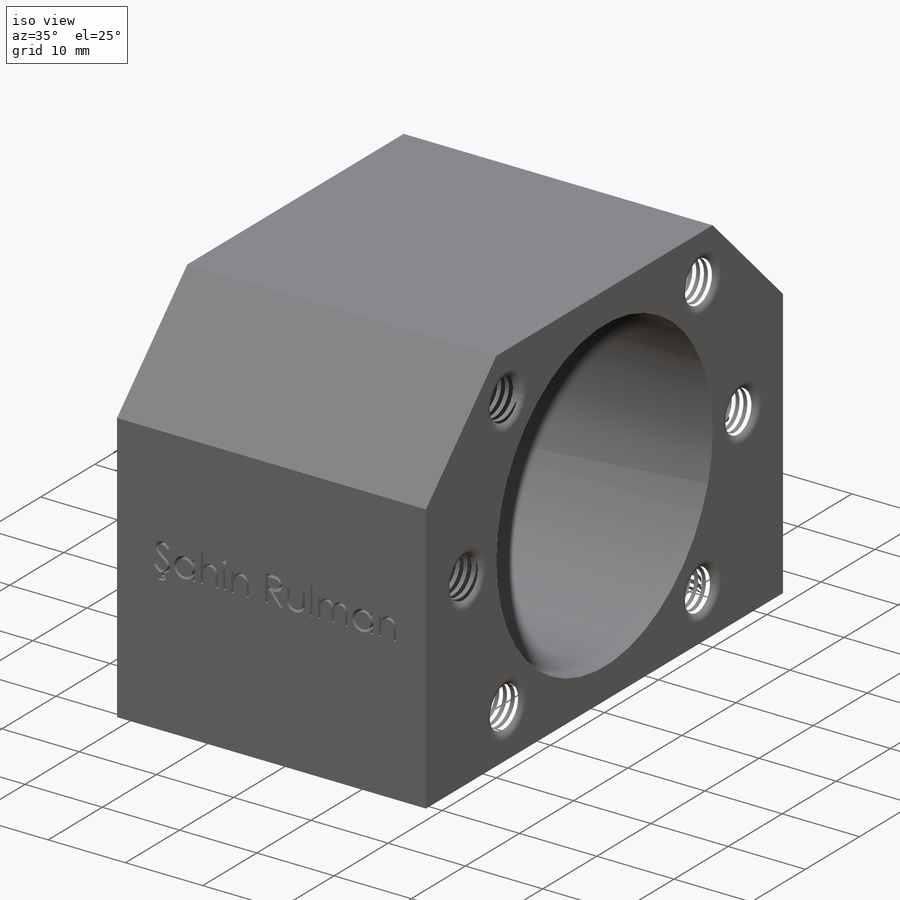
[diagram: iso view]
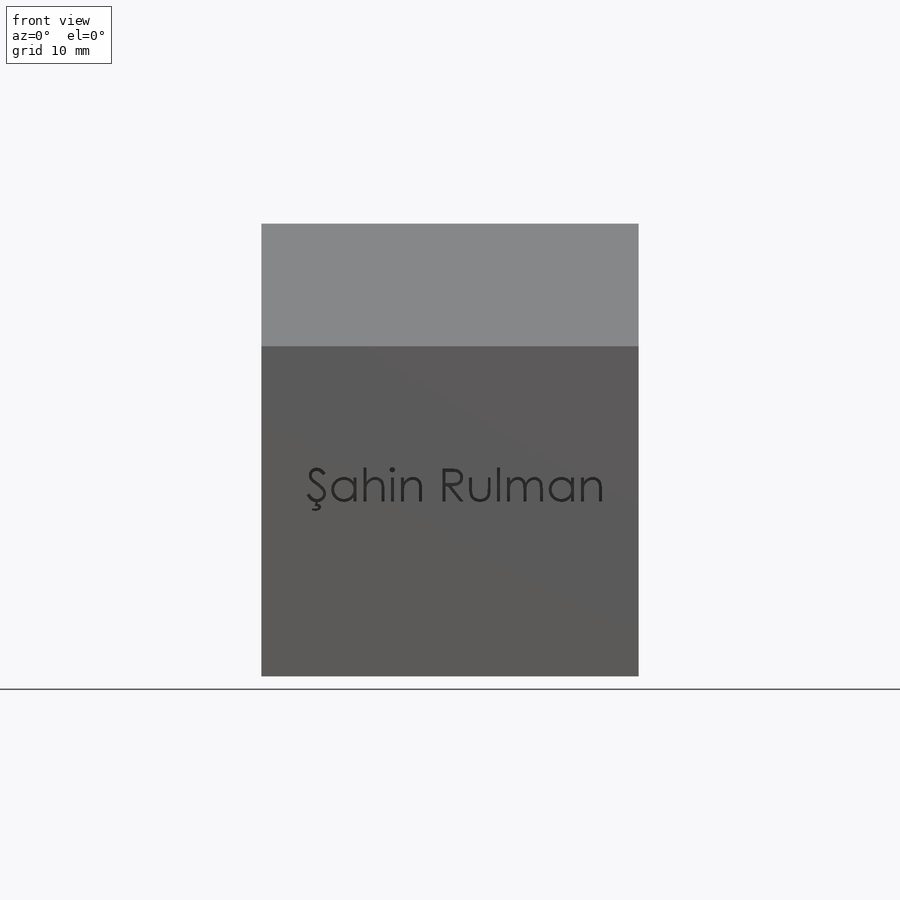
[diagram: front view]
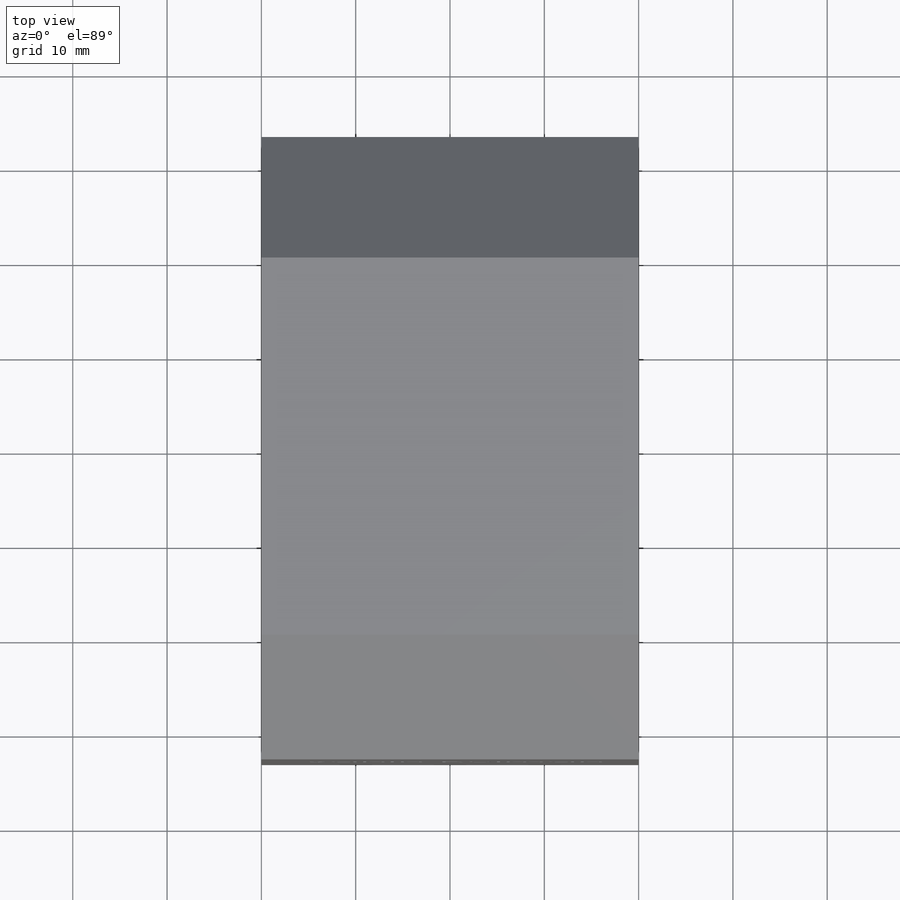
[diagram: top view]
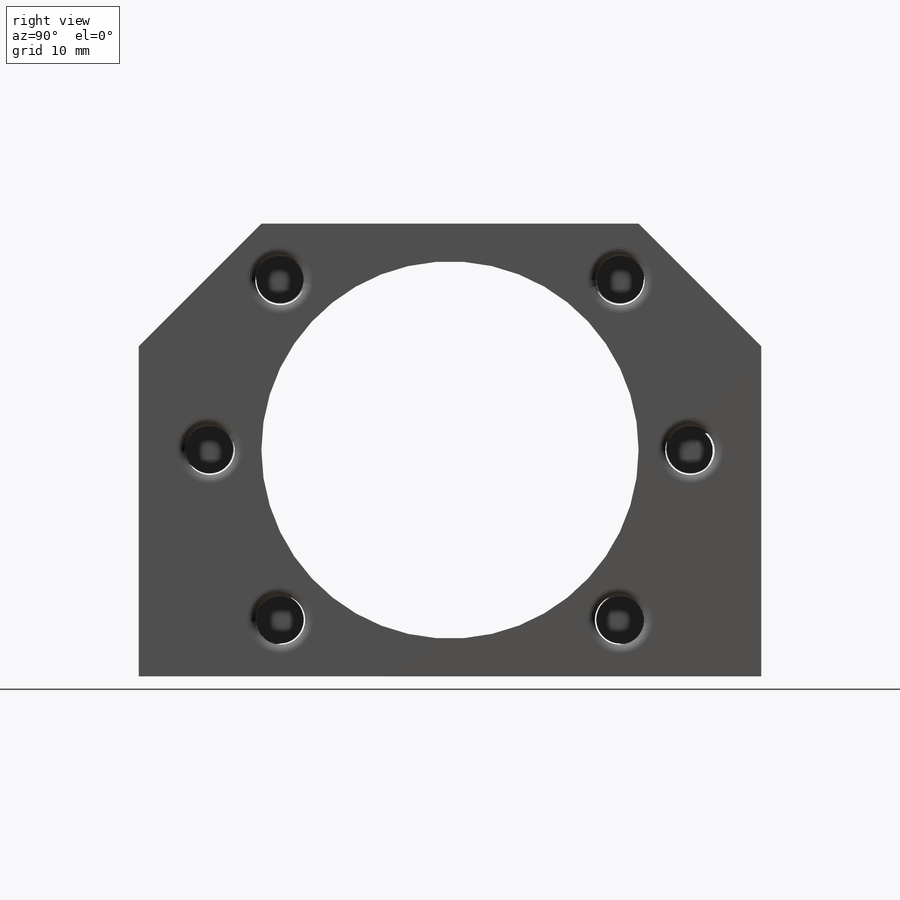
[diagram: right view]
SOLIDWORKS PART (.sldprt)
format: sldprt  version: not decoded by parser v0  size: 3,762,688 bytes
history: native  units: mm
features: sketch x9, cut_extrude x4, mirror x3, fillet x2, helix x2, plane x2, sweep x2, pattern_circular x2, material x1, extrude x1 (+11 scaffold rows collapsed)
feature tree (39):
  scaffold x11  (default folders/planes/origin — collapsed)
  material  "Material <not specified>"
  sketch  "Sketch1"  dims[D9=40.0mm D1=66.0mm D2=33.0mm D3=48.0mm D4=13.0mm D5=13.0mm D6=13.0mm D7=13.0mm D8=24.0mm]
  extrude  "Boss-Extrude1"  Depth=40mm
  sketch  "Sketch2"  dims[c1.D4=5.0mm c1.D1=~28.589332mm c2.D1=45.0deg c2.D2=~47.373576mm c3.D2=45.0deg c3.D3=6.5mm]
  cut_extrude  "Cut-Extrude1"  Depth=15mm
  fillet  "Fillet1"  Radius=1mm
  sketch  "Sketch5"
  cut_extrude  "Cut-Extrude2"  Depth=2mm
  sketch  "Sketch6"
  cut_extrude  "Cut-Extrude3"  Depth=2mm
  sketch  "Sketch7"  dims[c1.D5=5.0mm c1.D6=5.0mm c1.D7=5.0mm c1.D8=5.0mm c2.D6=~71.687431mm c2.D1=25.0mm c2.D2=25.0mm c2.D3=12.0mm c2.D4=12.0mm]
  cut_extrude  "Cut-Extrude4"  Depth=15mm
  fillet  "Fillet2"  Radius=1mm
  sketch  "Sketch8"
  helix  "Helix/Spiral2"  Pitch=15mm
  plane  "Plane2"
  sketch  "Sketch9"  dims[D1=0.5mm]
  sweep  "Cut-Sweep2"
  mirror  "Mirror2"
  mirror  "Mirror3"
  sketch  "Sketch10"
  helix  "Helix/Spiral3"  Pitch=15mm
  plane  "Plane3"
  sketch  "Sketch11"  dims[D1=0.5mm]
  sweep  "Cut-Sweep3"
  pattern_circular  "CirPattern1"  Count=2 Angle=45deg
  pattern_circular  "CirPattern2"  Count=2 Angle=315deg
  mirror  "Mirror4"
decode coverage: 16 of 25 modeling features carry decoded parameters
note: ~ marks probable driven/reference dimensions
note: suppression state not decoded; provenance and decode notes live in map.json
